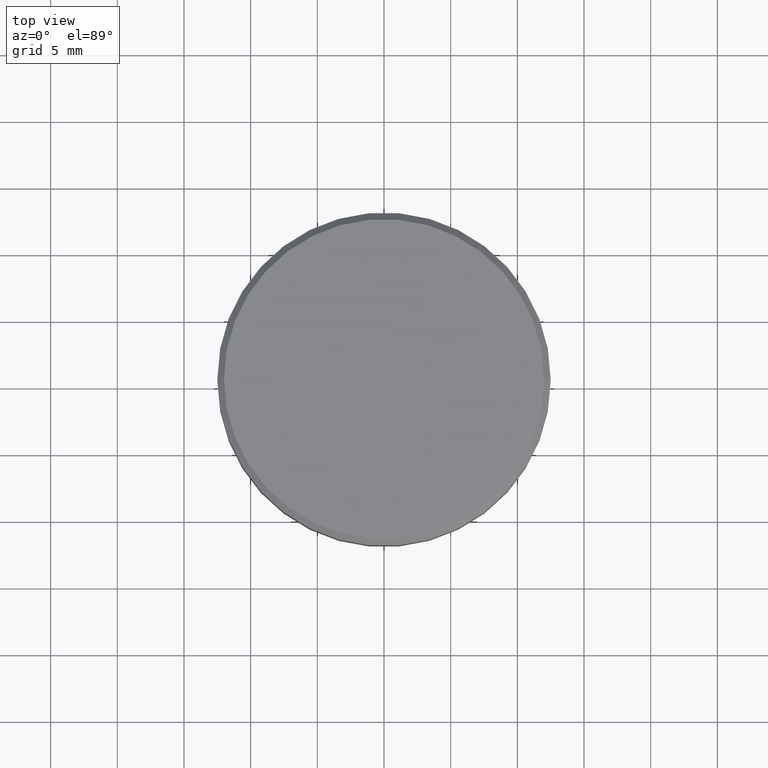
[diagram: clean part render]
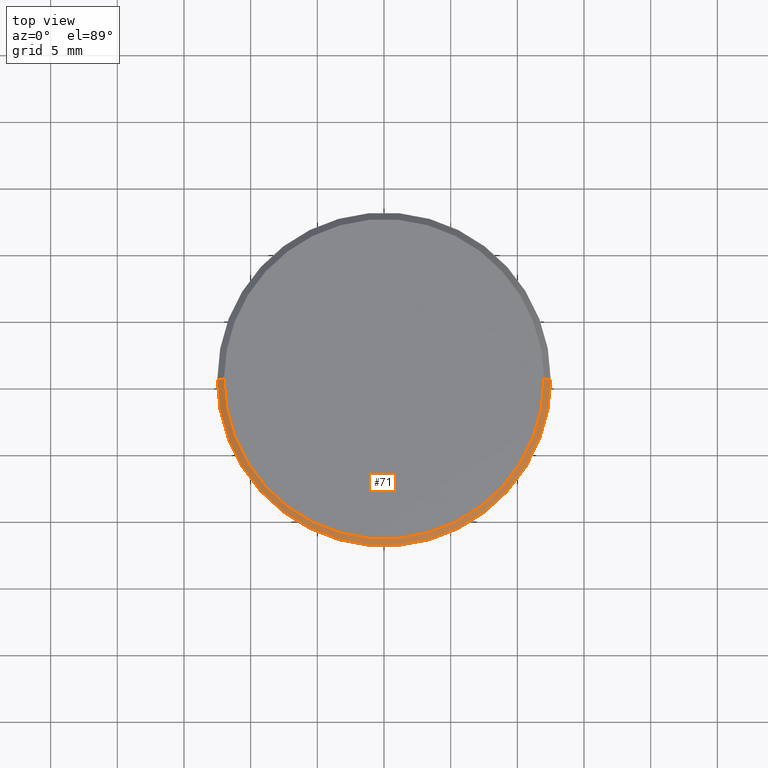
[diagram: same view with one face highlighted and labeled with its STEP entity id]
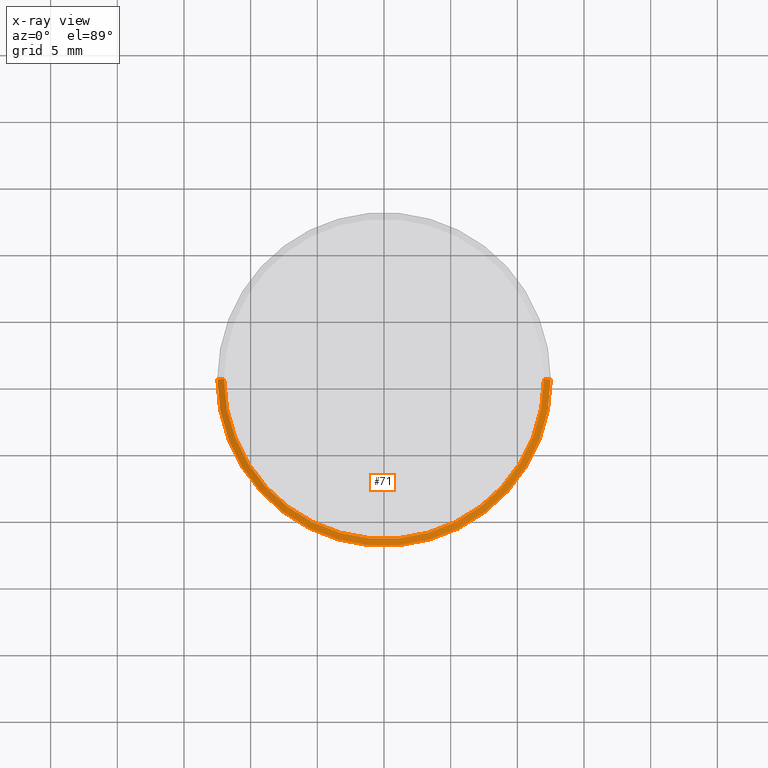
[diagram: x-ray of the same camera — body ghosted, the highlighted face saturated]
A machine part, top view. The second image highlights one B-rep face of the part: STEP entity #71.
The next image is the same camera in x-ray: the body ghosted, the highlighted face saturated — about 0% of this face is hidden behind the body in this view.
In plain terms, the highlighted conical surface has half-angle 45 deg.
Its self-contained STEP definition (entity closure, byte-faithful):
#71 = ADVANCED_FACE ( 'NONE', ( #568 ), #717, .T. ) ;
#83 = AXIS2_PLACEMENT_3D ( 'NONE', #942, #492, #383 ) ;
#107 = ORIENTED_EDGE ( 'NONE', *, *, #543, .T. ) ;
#141 = DIRECTION ( 'NONE',  ( 1.000000000000000000, 0.000000000000000000, 0.000000000000000000 ) ) ;
#164 = DIRECTION ( 'NONE',  ( -0.7071067811865512365, 0.000000000000000000, -0.7071067811865439090 ) ) ;
#178 = CARTESIAN_POINT ( 'NONE',  ( -11.99999999999998224, 0.000000000000000000, 0.000000000000000000 ) ) ;
#219 = CARTESIAN_POINT ( 'NONE',  ( 0.000000000000000000, 0.000000000000000000, 0.000000000000000000 ) ) ;
#265 = ORIENTED_EDGE ( 'NONE', *, *, #325, .F. ) ;
#281 = CIRCLE ( 'NONE', #871, 12.50000000000000000 ) ;
#311 = VERTEX_POINT ( 'NONE', #771 ) ;
#325 = EDGE_CURVE ( 'NONE', #785, #311, #423, .T. ) ;
#331 = CARTESIAN_POINT ( 'NONE',  ( 0.000000000000000000, 0.000000000000000000, -0.5000000000000125455 ) ) ;
#333 = ORIENTED_EDGE ( 'NONE', *, *, #926, .F. ) ;
#383 = DIRECTION ( 'NONE',  ( -1.000000000000000000, 0.000000000000000000, 0.000000000000000000 ) ) ;
#410 = CARTESIAN_POINT ( 'NONE',  ( -11.99999999999998224, 0.000000000000000000, 0.000000000000000000 ) ) ;
#420 = EDGE_LOOP ( 'NONE', ( #333, #265, #107, #1177 ) ) ;
#423 = CIRCLE ( 'NONE', #773, 11.99999999999998224 ) ;
#492 = DIRECTION ( 'NONE',  ( 0.000000000000000000, 0.000000000000000000, -1.000000000000000000 ) ) ;
#497 = CARTESIAN_POINT ( 'NONE',  ( 12.50000000000000000, 0.000000000000000000, -0.5000000000000125455 ) ) ;
#543 = EDGE_CURVE ( 'NONE', #785, #735, #984, .T. ) ;
#568 = FACE_OUTER_BOUND ( 'NONE', #420, .T. ) ;
#607 = EDGE_CURVE ( 'NONE', #772, #735, #281, .T. ) ;
#610 = DIRECTION ( 'NONE',  ( -0.000000000000000000, -0.000000000000000000, 1.000000000000000000 ) ) ;
#682 = DIRECTION ( 'NONE',  ( 1.000000000000000000, 0.000000000000000000, 0.000000000000000000 ) ) ;
#717 = CONICAL_SURFACE ( 'NONE', #83, 11.99999999999998224, 0.7853981633974533860 ) ;
#735 = VERTEX_POINT ( 'NONE', #1089 ) ;
#768 = DIRECTION ( 'NONE',  ( 0.7071067811865512365, 8.659560562354978464E-17, -0.7071067811865439090 ) ) ;
#771 = CARTESIAN_POINT ( 'NONE',  ( 11.99999999999998224, 1.500192328955506748E-15, 0.000000000000000000 ) ) ;
#772 = VERTEX_POINT ( 'NONE', #497 ) ;
#773 = AXIS2_PLACEMENT_3D ( 'NONE', #219, #610, #682 ) ;
#785 = VERTEX_POINT ( 'NONE', #410 ) ;
#790 = VECTOR ( 'NONE', #768, 1000.000000000000000 ) ;
#851 = CARTESIAN_POINT ( 'NONE',  ( 11.99999999999998224, 1.469576158976821778E-15, 0.000000000000000000 ) ) ;
#856 = LINE ( 'NONE', #851, #790 ) ;
#871 = AXIS2_PLACEMENT_3D ( 'NONE', #331, #957, #141 ) ;
#926 = EDGE_CURVE ( 'NONE', #311, #772, #856, .T. ) ;
#942 = CARTESIAN_POINT ( 'NONE',  ( 0.000000000000000000, 0.000000000000000000, 0.000000000000000000 ) ) ;
#957 = DIRECTION ( 'NONE',  ( 0.000000000000000000, 0.000000000000000000, -1.000000000000000000 ) ) ;
#984 = LINE ( 'NONE', #178, #1031 ) ;
#1031 = VECTOR ( 'NONE', #164, 1000.000000000000000 ) ;
#1089 = CARTESIAN_POINT ( 'NONE',  ( -12.50000000000000000, 1.530808498934191521E-15, -0.5000000000000125455 ) ) ;
#1177 = ORIENTED_EDGE ( 'NONE', *, *, #607, .F. ) ;